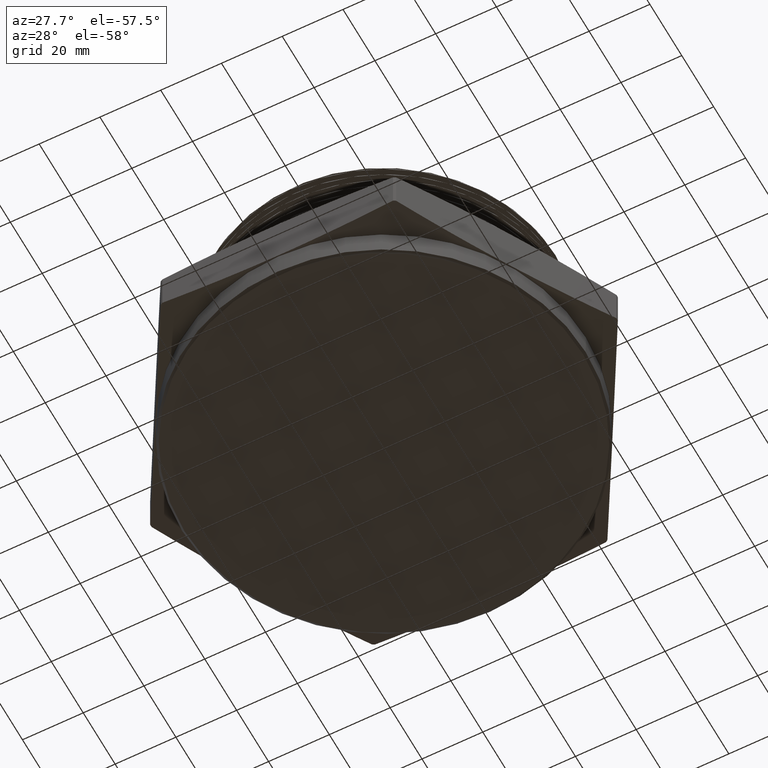
[diagram: clean part render]
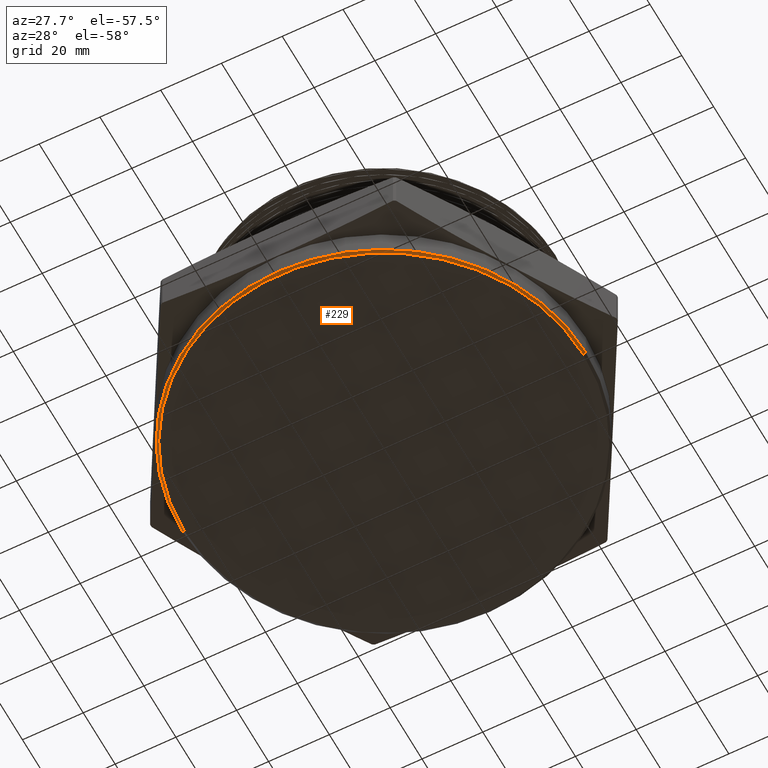
[diagram: same view with one face highlighted and labeled with its STEP entity id]
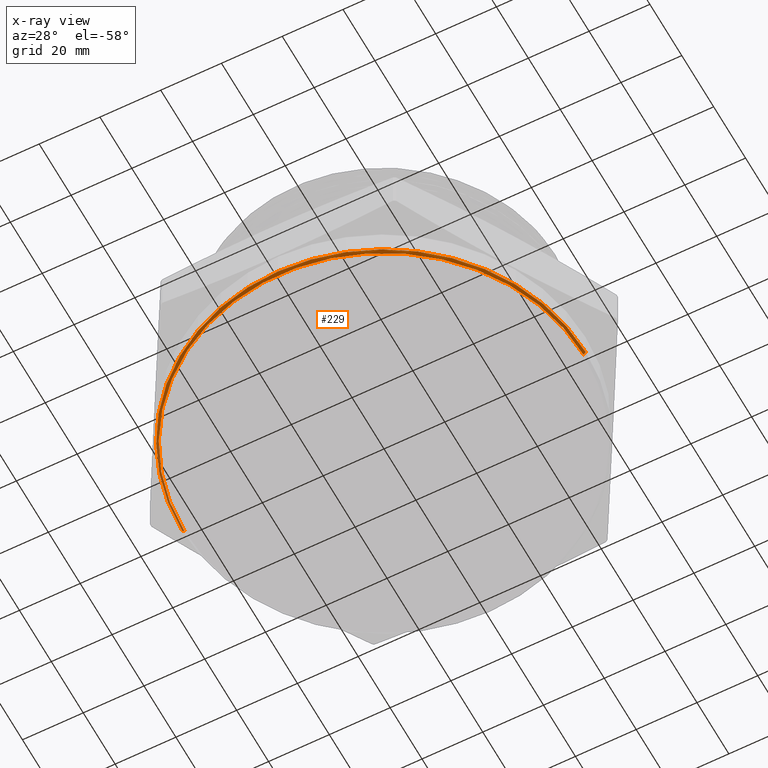
[diagram: x-ray of the same camera — body ghosted, the highlighted face saturated]
A machine part, auxiliary view. The second image highlights one B-rep face of the part: STEP entity #229.
The next image is the same camera in x-ray: the body ghosted, the highlighted face saturated — about 0% of this face is hidden behind the body in this view.
In plain terms, the highlighted conical surface has half-angle 45 deg.
Its self-contained STEP definition (entity closure, byte-faithful):
#50 = LINE ( 'NONE', #1549, #7287 ) ;
#229 = ADVANCED_FACE ( 'NONE', ( #3467 ), #3471, .T. ) ;
#268 = ORIENTED_EDGE ( 'NONE', *, *, #7442, .F. ) ;
#269 = ORIENTED_EDGE ( 'NONE', *, *, #7540, .F. ) ;
#270 = ORIENTED_EDGE ( 'NONE', *, *, #7440, .T. ) ;
#271 = ORIENTED_EDGE ( 'NONE', *, *, #7539, .F. ) ;
#1532 = DIRECTION ( 'NONE',  ( 0.7071067811865539000, 0.0000000000000000000, 0.7071067811865410200 ) ) ;
#1536 = DIRECTION ( 'NONE',  ( -0.7071067811865539000, 8.659560562355011700E-017, 0.7071067811865410200 ) ) ;
#1549 = CARTESIAN_POINT ( 'NONE',  ( 2.584999999999998600, 0.0000000000000000000, -0.3499999999999999800 ) ) ;
#1553 = CARTESIAN_POINT ( 'NONE',  ( -2.584999999999998600, 3.165711975795906600E-016, -0.3499999999999999800 ) ) ;
#1865 = CARTESIAN_POINT ( 'NONE',  ( -2.584999999999998600, 3.184081677783117700E-016, -0.3499999999999999800 ) ) ;
#1866 = CARTESIAN_POINT ( 'NONE',  ( 2.615000000000000200, 0.0000000000000000000, -0.3199999999999989000 ) ) ;
#1875 = CARTESIAN_POINT ( 'NONE',  ( 2.584999999999998600, 0.0000000000000000000, -0.3499999999999999800 ) ) ;
#1907 = CARTESIAN_POINT ( 'NONE',  ( -2.615000000000000200, 3.202451379770328800E-016, -0.3199999999999989000 ) ) ;
#2544 = CARTESIAN_POINT ( 'NONE',  ( 0.0000000000000000000, 0.0000000000000000000, -0.3199999999999989000 ) ) ;
#2545 = DIRECTION ( 'NONE',  ( 0.0000000000000000000, 0.0000000000000000000, 1.000000000000000000 ) ) ;
#2546 = DIRECTION ( 'NONE',  ( -1.000000000000000000, 0.0000000000000000000, 0.0000000000000000000 ) ) ;
#2547 = CARTESIAN_POINT ( 'NONE',  ( 0.0000000000000000000, 0.0000000000000000000, -0.3499999999999999800 ) ) ;
#2548 = DIRECTION ( 'NONE',  ( 0.0000000000000000000, 0.0000000000000000000, -1.000000000000000000 ) ) ;
#2549 = DIRECTION ( 'NONE',  ( -1.000000000000000000, 0.0000000000000000000, 0.0000000000000000000 ) ) ;
#3391 = DIRECTION ( 'NONE',  ( 1.000000000000000000, 0.0000000000000000000, 0.0000000000000000000 ) ) ;
#3393 = CARTESIAN_POINT ( 'NONE',  ( 0.0000000000000000000, 0.0000000000000000000, -0.3499999999999999800 ) ) ;
#3394 = DIRECTION ( 'NONE',  ( 0.0000000000000000000, 0.0000000000000000000, 1.000000000000000000 ) ) ;
#3467 = FACE_OUTER_BOUND ( 'NONE', #6532, .T. ) ;
#3471 = CONICAL_SURFACE ( 'NONE', #7570, 2.584999999999998600, 0.7853981633974573800 ) ;
#6316 = AXIS2_PLACEMENT_3D ( 'NONE', #2544, #2545, #2546 ) ;
#6317 = AXIS2_PLACEMENT_3D ( 'NONE', #2547, #2548, #2549 ) ;
#6339 = VERTEX_POINT ( 'NONE', #1865 ) ;
#6340 = VERTEX_POINT ( 'NONE', #1866 ) ;
#6343 = VERTEX_POINT ( 'NONE', #1875 ) ;
#6375 = VERTEX_POINT ( 'NONE', #1907 ) ;
#6532 = EDGE_LOOP ( 'NONE', ( #268, #269, #270, #271 ) ) ;
#7287 = VECTOR ( 'NONE', #1532, 39.37007874015748900 ) ;
#7288 = LINE ( 'NONE', #1553, #7291 ) ;
#7291 = VECTOR ( 'NONE', #1536, 39.37007874015748900 ) ;
#7380 = CIRCLE ( 'NONE', #6316, 2.615000000000000200 ) ;
#7382 = CIRCLE ( 'NONE', #6317, 2.584999999999998600 ) ;
#7440 = EDGE_CURVE ( 'NONE', #6343, #6340, #50, .T. ) ;
#7442 = EDGE_CURVE ( 'NONE', #6339, #6375, #7288, .T. ) ;
#7539 = EDGE_CURVE ( 'NONE', #6375, #6340, #7380, .T. ) ;
#7540 = EDGE_CURVE ( 'NONE', #6343, #6339, #7382, .T. ) ;
#7570 = AXIS2_PLACEMENT_3D ( 'NONE', #3393, #3394, #3391 ) ;